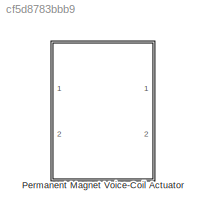
MODEL slx_cf5d8783bbb9
KIND model
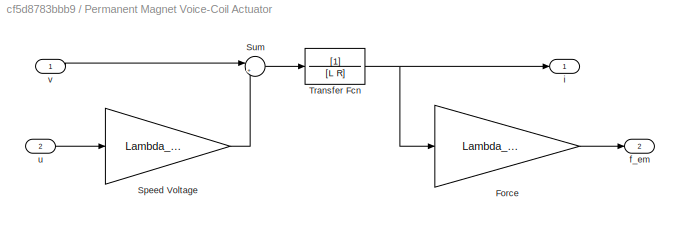
BLOCK [SubSystem] Permanent Magnet Voice-Coil Actuator
  Ports = [2, 2]
  RequestExecContextInheritance = off
  Variant = off
BLOCK [Gain] Permanent Magnet Voice-Coil Actuator/Force
  Gain = Lambda_pm0oell
  OutDataTypeStr = Inherit: Inherit via internal rule
  ParamDataTypeStr = Inherit: Inherit via internal rule
  SaturateOnIntegerOverflow = off
BLOCK [Gain] Permanent Magnet Voice-Coil Actuator/Speed Voltage
  Gain = Lambda_pm0oell
  OutDataTypeStr = Inherit: Inherit via internal rule
  ParamDataTypeStr = Inherit: Inherit via internal rule
  SaturateOnIntegerOverflow = off
BLOCK [Sum] Permanent Magnet Voice-Coil Actuator/Sum
  IconShape = round
  InputSameDT = off
  Inputs = |+-
  OutDataTypeStr = Inherit: Inherit via internal rule
  Ports = [2, 1]
  SaturateOnIntegerOverflow = off
BLOCK [TransferFcn] Permanent Magnet Voice-Coil Actuator/Transfer Fcn
  Denominator = [L R]
BLOCK [Outport] Permanent Magnet Voice-Coil Actuator/f_em
  IconDisplay = Port number
  Port = 2
BLOCK [Outport] Permanent Magnet Voice-Coil Actuator/i
  IconDisplay = Port number
BLOCK [Inport] Permanent Magnet Voice-Coil Actuator/u
  IconDisplay = Port number
  Port = 2
BLOCK [Inport] Permanent Magnet Voice-Coil Actuator/v
  IconDisplay = Port number
LINE Permanent Magnet Voice-Coil Actuator/Force:1 -> Permanent Magnet Voice-Coil Actuator/f_em:1
LINE Permanent Magnet Voice-Coil Actuator/Speed Voltage:1 -> Permanent Magnet Voice-Coil Actuator/Sum:2
LINE Permanent Magnet Voice-Coil Actuator/Sum:1 -> Permanent Magnet Voice-Coil Actuator/Transfer Fcn:1
NET Permanent Magnet Voice-Coil Actuator/Transfer Fcn:1 -> Permanent Magnet Voice-Coil Actuator/Force:1, Permanent Magnet Voice-Coil Actuator/i:1
LINE Permanent Magnet Voice-Coil Actuator/u:1 -> Permanent Magnet Voice-Coil Actuator/Speed Voltage:1
LINE Permanent Magnet Voice-Coil Actuator/v:1 -> Permanent Magnet Voice-Coil Actuator/Sum:1
note: NET lines group one-source signal fan-out (src -> all destinations, sorted); 1:1 wires keep LINE
